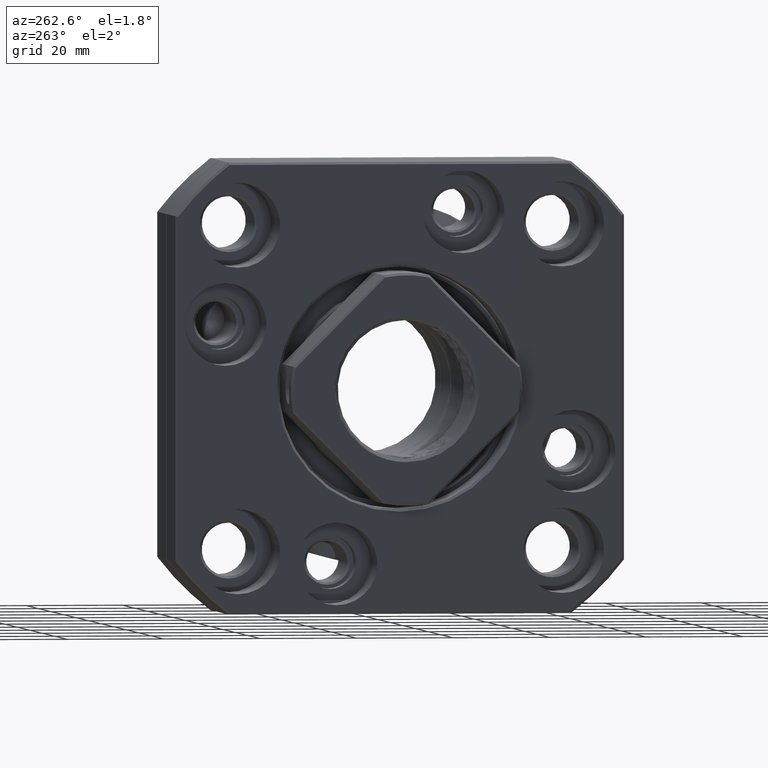
[diagram: clean part render]
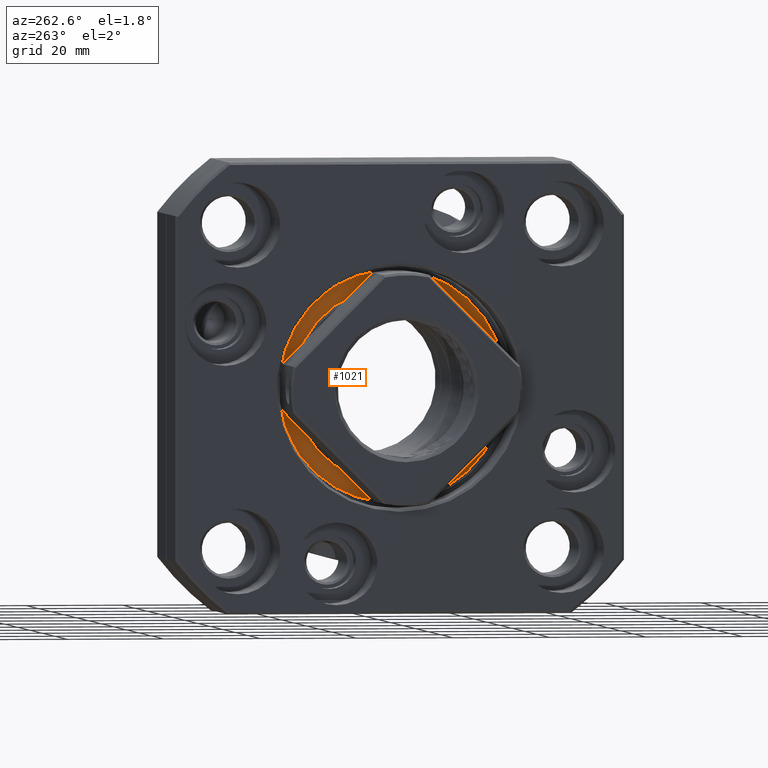
[diagram: same view with one face highlighted and labeled with its STEP entity id]
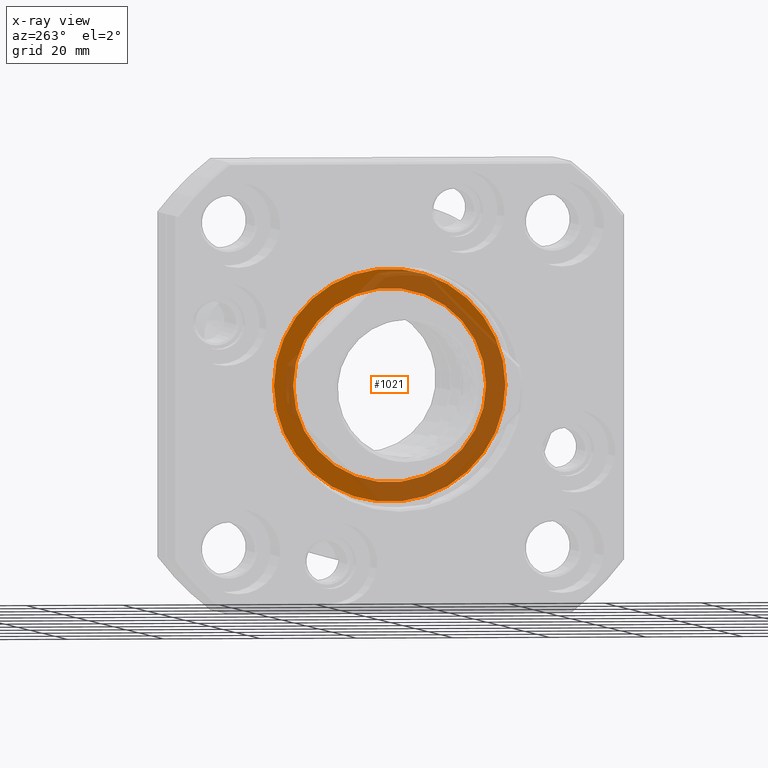
[diagram: x-ray of the same camera — body ghosted, the highlighted face saturated]
A machine part, auxiliary view. The second image highlights one B-rep face of the part: STEP entity #1021.
The next image is the same camera in x-ray: the body ghosted, the highlighted face saturated — about 55% of this face is hidden behind the body in this view.
In plain terms, the highlighted planar face has unit normal (1, 0, -0).
Its self-contained STEP definition (entity closure, byte-faithful):
#972 = EDGE_CURVE ( 'NONE', #973, #974, #7723, .T. ) ;
#973 = VERTEX_POINT ( 'NONE', #7718 ) ;
#974 = VERTEX_POINT ( 'NONE', #7717 ) ;
#987 = EDGE_CURVE ( 'NONE', #988, #989, #7757, .T. ) ;
#988 = VERTEX_POINT ( 'NONE', #7747 ) ;
#989 = VERTEX_POINT ( 'NONE', #7746 ) ;
#1018 = EDGE_CURVE ( 'NONE', #974, #973, #7820, .T. ) ;
#1021 = ADVANCED_FACE ( 'NONE', ( #7816, #7815 ), #7814, .F. ) ;
#1022 = EDGE_LOOP ( 'NONE', ( #1023, #1024 ) ) ;
#1023 = ORIENTED_EDGE ( 'NONE', *, *, #987, .F. ) ;
#1024 = ORIENTED_EDGE ( 'NONE', *, *, #1025, .F. ) ;
#1025 = EDGE_CURVE ( 'NONE', #989, #988, #7809, .T. ) ;
#1026 = EDGE_LOOP ( 'NONE', ( #1078, #1079 ) ) ;
#1078 = ORIENTED_EDGE ( 'NONE', *, *, #1018, .T. ) ;
#1079 = ORIENTED_EDGE ( 'NONE', *, *, #972, .T. ) ;
#7717 = CARTESIAN_POINT ( 'NONE',  ( 1.500000000000001300, -23.99999999999998900, -4.408728476930469300E-015 ) ) ;
#7718 = CARTESIAN_POINT ( 'NONE',  ( 1.500000000000001300, 23.99999999999998900, 7.347783726104173900E-015 ) ) ;
#7719 = DIRECTION ( 'NONE',  ( 0.0000000000000000000, -1.000000000000000000, -1.836970198721029700E-016 ) ) ;
#7720 = DIRECTION ( 'NONE',  ( -1.000000000000000000, 0.0000000000000000000, 0.0000000000000000000 ) ) ;
#7721 = CARTESIAN_POINT ( 'NONE',  ( 1.500000000000001300, 6.162975822039154700E-030, -1.368455531567204200E-045 ) ) ;
#7722 = AXIS2_PLACEMENT_3D ( 'NONE', #7721, #7720, #7719 ) ;
#7723 = CIRCLE ( 'NONE', #7722, 23.99999999999998900 ) ;
#7746 = CARTESIAN_POINT ( 'NONE',  ( 1.500000000000001300, 19.99999999999998900, 6.123153105086811300E-015 ) ) ;
#7747 = CARTESIAN_POINT ( 'NONE',  ( 1.500000000000001300, -19.99999999999998900, -3.673940397442057600E-015 ) ) ;
#7748 = DIRECTION ( 'NONE',  ( 0.0000000000000000000, -1.000000000000000000, -1.836970198721029700E-016 ) ) ;
#7749 = DIRECTION ( 'NONE',  ( -1.000000000000000000, 0.0000000000000000000, 0.0000000000000000000 ) ) ;
#7750 = CARTESIAN_POINT ( 'NONE',  ( 1.500000000000001300, 6.162975822039154700E-030, -1.368455531567204200E-045 ) ) ;
#7751 = AXIS2_PLACEMENT_3D ( 'NONE', #7750, #7749, #7748 ) ;
#7757 = CIRCLE ( 'NONE', #7751, 19.99999999999998900 ) ;
#7809 = CIRCLE ( 'NONE', #7869, 19.99999999999998900 ) ;
#7810 = DIRECTION ( 'NONE',  ( 0.0000000000000000000, 1.000000000000000000, 1.836970198721029700E-016 ) ) ;
#7811 = DIRECTION ( 'NONE',  ( 1.000000000000000000, 0.0000000000000000000, -0.0000000000000000000 ) ) ;
#7812 = AXIS2_PLACEMENT_3D ( 'NONE', #7813, #7811, #7810 ) ;
#7813 = CARTESIAN_POINT ( 'NONE',  ( 1.499999999999998700, 23.99999999999998900, 4.408728476930469300E-015 ) ) ;
#7814 = PLANE ( 'NONE',  #7812 ) ;
#7815 = FACE_OUTER_BOUND ( 'NONE', #1026, .T. ) ;
#7816 = FACE_BOUND ( 'NONE', #1022, .T. ) ;
#7817 = DIRECTION ( 'NONE',  ( 0.0000000000000000000, -1.000000000000000000, -1.836970198721029700E-016 ) ) ;
#7818 = DIRECTION ( 'NONE',  ( -1.000000000000000000, 0.0000000000000000000, 0.0000000000000000000 ) ) ;
#7819 = AXIS2_PLACEMENT_3D ( 'NONE', #7824, #7818, #7817 ) ;
#7820 = CIRCLE ( 'NONE', #7819, 23.99999999999998900 ) ;
#7824 = CARTESIAN_POINT ( 'NONE',  ( 1.500000000000001300, 6.162975822039154700E-030, -1.368455531567204200E-045 ) ) ;
#7866 = DIRECTION ( 'NONE',  ( 0.0000000000000000000, -1.000000000000000000, -1.836970198721029700E-016 ) ) ;
#7867 = DIRECTION ( 'NONE',  ( -1.000000000000000000, 0.0000000000000000000, 0.0000000000000000000 ) ) ;
#7868 = CARTESIAN_POINT ( 'NONE',  ( 1.500000000000001300, 6.162975822039154700E-030, -1.368455531567204200E-045 ) ) ;
#7869 = AXIS2_PLACEMENT_3D ( 'NONE', #7868, #7867, #7866 ) ;